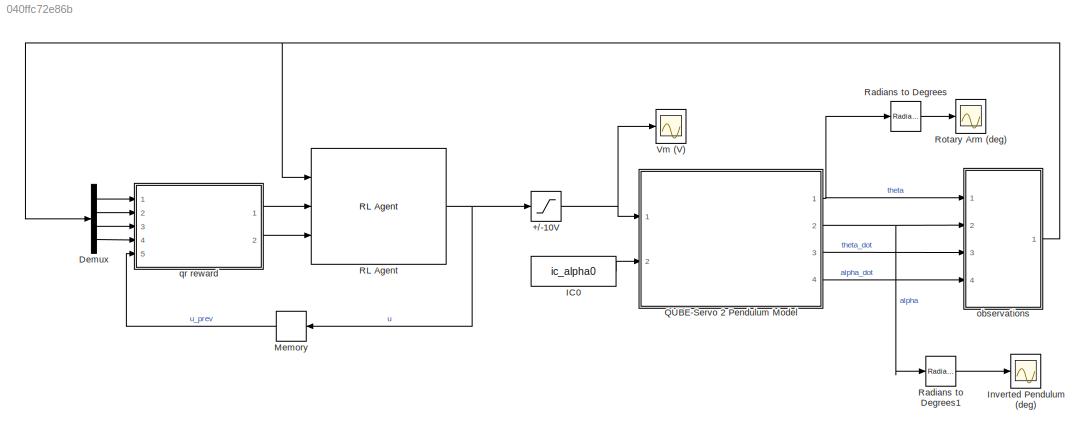
MODEL slx_040ffc72e86b
KIND model
CONFIG AbsTol = auto
CONFIG EnableMultiTasking = on
CONFIG FixedStep = 0.002
CONFIG MaxStep = auto
CONFIG MinStep = auto
CONFIG RelTol = 1e-3
CONFIG SampleTimeConstraint = Unconstrained
CONFIG SolverName = ode4
CONFIG StartTime = 0.0
CONFIG StopTime = inf
BLOCK [Saturate] +//-10V
  LowerLimit = -Vmax
  OutDataTypeStr = Inherit: Inherit via back propagation
  UpperLimit = Vmax
BLOCK [Demux] Demux
  Ports = [1, 4]
BLOCK [Constant] IC0
  Value = ic_alpha0
BLOCK [Scope] Inverted Pendulum (deg)
  Floating = off
  NumInputPorts = 1
  Ports = [1]
  ScopeSpecificationString = Simulink.scopes.TimeScopeBlockCfg('CurrentConfiguration', extmgr.ConfigurationSet(extmgr.Configuration('Core','General UI',true),extmgr.Configuration('Core','Source UI',true),extmgr.Configuration('Sources','WiredSimulink',true,'DataLoggingVariableName','ScopeData1'),extmgr.Configuration('Visuals','Time Domain',true,'SerializedDisplays',{struct('MinYLimReal','-15','MaxYLimReal','15','YLabelReal',''...<+1410ch>
BLOCK [Memory] Memory
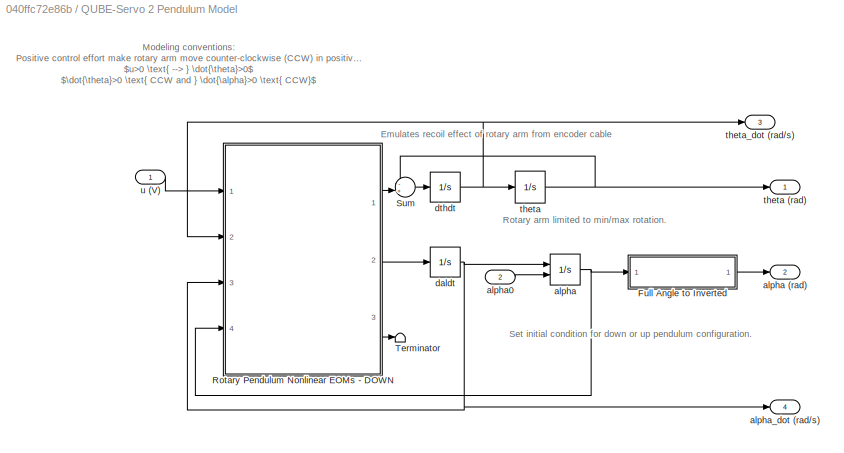
BLOCK [SubSystem] QUBE-Servo 2 Pendulum Model
  Ports = [2, 4]
  RequestExecContextInheritance = off
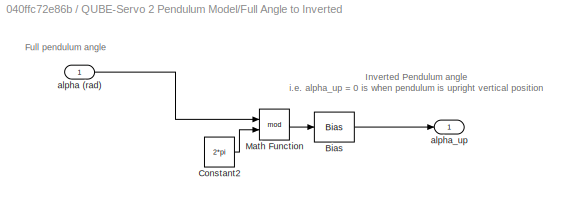
BLOCK [SubSystem] QUBE-Servo 2 Pendulum Model/Full Angle to Inverted
  Ports = [1, 1]
  RequestExecContextInheritance = off
BLOCK [Bias] QUBE-Servo 2 Pendulum Model/Full Angle to Inverted/Bias
  Bias = -pi
  SaturateOnIntegerOverflow = off
BLOCK [Constant] QUBE-Servo 2 Pendulum Model/Full Angle to Inverted/Constant2
  Value = 2*pi
BLOCK [Math] QUBE-Servo 2 Pendulum Model/Full Angle to Inverted/Math Function
  Operator = mod
  Ports = [2, 1]
  SignedPower = on
BLOCK [Inport] QUBE-Servo 2 Pendulum Model/Full Angle to Inverted/alpha (rad)
BLOCK [Outport] QUBE-Servo 2 Pendulum Model/Full Angle to Inverted/alpha_up
  VectorParamsAs1DForOutWhenUnconnected = off
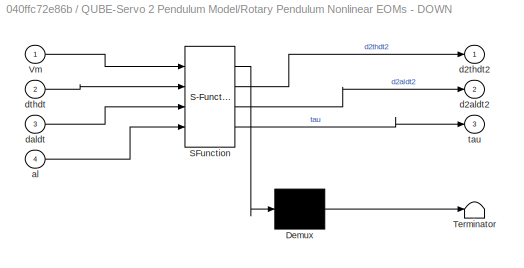
BLOCK [SubSystem] QUBE-Servo 2 Pendulum Model/Rotary Pendulum Nonlinear EOMs - DOWN
  ErrorFcn = Stateflow.Translate.translate
  PermitHierarchicalResolution = ExplicitOnly
  Ports = [4, 3]
  RequestExecContextInheritance = off
  SFBlockType = MATLAB Function
  TreatAsAtomicUnit = on
BLOCK [Demux] QUBE-Servo 2 Pendulum Model/Rotary Pendulum Nonlinear EOMs - DOWN/ Demux 
  Outputs = 1
  Ports = [1, 1]
BLOCK [S-Function] QUBE-Servo 2 Pendulum Model/Rotary Pendulum Nonlinear EOMs - DOWN/ SFunction 
  EnableBusSupport = on
  FunctionName = sf_sfun
  Parameters = Jp,Jr,Rm,bp,br,g,km,kt,l,mp,r
  PortCounts = [4 4]
  Ports = [4, 4]
  SFcnIsStateOwnerBlock = off
  SFunctionDeploymentMode = off
  Tag = Stateflow S-Function 6
BLOCK [Terminator] QUBE-Servo 2 Pendulum Model/Rotary Pendulum Nonlinear EOMs - DOWN/ Terminator 
BLOCK [Inport] QUBE-Servo 2 Pendulum Model/Rotary Pendulum Nonlinear EOMs - DOWN/Vm
BLOCK [Inport] QUBE-Servo 2 Pendulum Model/Rotary Pendulum Nonlinear EOMs - DOWN/al
  Port = 4
BLOCK [Outport] QUBE-Servo 2 Pendulum Model/Rotary Pendulum Nonlinear EOMs - DOWN/d2aldt2
  Port = 2
  VectorParamsAs1DForOutWhenUnconnected = off
BLOCK [Outport] QUBE-Servo 2 Pendulum Model/Rotary Pendulum Nonlinear EOMs - DOWN/d2thdt2
  VectorParamsAs1DForOutWhenUnconnected = off
BLOCK [Inport] QUBE-Servo 2 Pendulum Model/Rotary Pendulum Nonlinear EOMs - DOWN/daldt
  Port = 3
BLOCK [Inport] QUBE-Servo 2 Pendulum Model/Rotary Pendulum Nonlinear EOMs - DOWN/dthdt
  Port = 2
BLOCK [Outport] QUBE-Servo 2 Pendulum Model/Rotary Pendulum Nonlinear EOMs - DOWN/tau
  Port = 3
  VectorParamsAs1DForOutWhenUnconnected = off
BLOCK [Sum] QUBE-Servo 2 Pendulum Model/Sum
  Inputs = -+|
  Ports = [2, 1]
BLOCK [Terminator] QUBE-Servo 2 Pendulum Model/Terminator
BLOCK [Integrator] QUBE-Servo 2 Pendulum Model/alpha
  InitialCondition = ic_alpha0
  InitialConditionSource = external
  Ports = [2, 1]
BLOCK [Outport] QUBE-Servo 2 Pendulum Model/alpha (rad)
  Port = 2
  VectorParamsAs1DForOutWhenUnconnected = off
BLOCK [Inport] QUBE-Servo 2 Pendulum Model/alpha0
  Port = 2
BLOCK [Outport] QUBE-Servo 2 Pendulum Model/alpha_dot (rad//s)
  Port = 4
  VectorParamsAs1DForOutWhenUnconnected = off
BLOCK [Integrator] QUBE-Servo 2 Pendulum Model/daldt
  Ports = [1, 1]
BLOCK [Integrator] QUBE-Servo 2 Pendulum Model/dthdt
  Ports = [1, 1]
BLOCK [Integrator] QUBE-Servo 2 Pendulum Model/theta
  LimitOutput = on
  LowerSaturationLimit = -theta_max
  Ports = [1, 1]
  UpperSaturationLimit = theta_max
BLOCK [Outport] QUBE-Servo 2 Pendulum Model/theta (rad)
  VectorParamsAs1DForOutWhenUnconnected = off
BLOCK [Outport] QUBE-Servo 2 Pendulum Model/theta_dot (rad//s)
  Port = 3
  VectorParamsAs1DForOutWhenUnconnected = off
BLOCK [Inport] QUBE-Servo 2 Pendulum Model/u (V)
BLOCK [Reference] RL Agent  REF=rllib/RL Agent
  Ports = [3, 1]
  SourceBlock = rllib/RL Agent
  SourceProductBaseCode = RL
  SourceType = RL Agent
BLOCK [Reference] Radians to Degrees  REF=simulink_extras/Transformations/Radians
to Degrees
  Ports = [1, 1]
  SourceBlock = simulink_extras/Transformations/Radians\nto Degrees
  SourceProductBaseCode = SL
  SourceType = RadiansToDegrees
BLOCK [Reference] Radians to Degrees1  REF=simulink_extras/Transformations/Radians
to Degrees
  Ports = [1, 1]
  SourceBlock = simulink_extras/Transformations/Radians\nto Degrees
  SourceProductBaseCode = SL
  SourceType = RadiansToDegrees
BLOCK [Scope] Rotary Arm (deg)
  Floating = off
  NumInputPorts = 1
  Ports = [1]
  ScopeSpecificationString = Simulink.scopes.TimeScopeBlockCfg('CurrentConfiguration', extmgr.ConfigurationSet(extmgr.Configuration('Core','General UI',true),extmgr.Configuration('Core','Source UI',true),extmgr.Configuration('Sources','WiredSimulink',true,'DataLoggingVariableName','ScopeData2'),extmgr.Configuration('Visuals','Time Domain',true,'SerializedDisplays',{struct('MinYLimReal','-60','MaxYLimReal','60','YLabelReal',''...<+1413ch>
BLOCK [Scope] Vm (V)
  Floating = off
  NumInputPorts = 1
  Ports = [1]
  ScopeSpecificationString = Simulink.scopes.TimeScopeBlockCfg('CurrentConfiguration', extmgr.ConfigurationSet(extmgr.Configuration('Core','General UI',true),extmgr.Configuration('Core','Source UI',true),extmgr.Configuration('Sources','WiredSimulink',true),extmgr.Configuration('Visuals','Time Domain',true,'SerializedDisplays',{struct('MinYLimReal','-5.00000','MaxYLimReal','5.00000','YLabelReal','','MinYLimMag','0.00000','MaxY...<+1445ch>
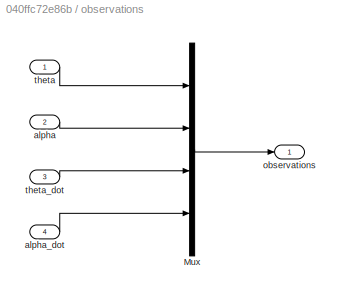
BLOCK [SubSystem] observations
  Ports = [4, 1]
  RequestExecContextInheritance = off
  VariantControl = sincos
BLOCK [Mux] observations/Mux
  DisplayOption = bar
  Ports = [4, 1]
BLOCK [Inport] observations/alpha
  Port = 2
BLOCK [Inport] observations/alpha_dot
  Port = 4
BLOCK [Outport] observations/observations
  VectorParamsAs1DForOutWhenUnconnected = off
BLOCK [Inport] observations/theta
BLOCK [Inport] observations/theta_dot
  Port = 3
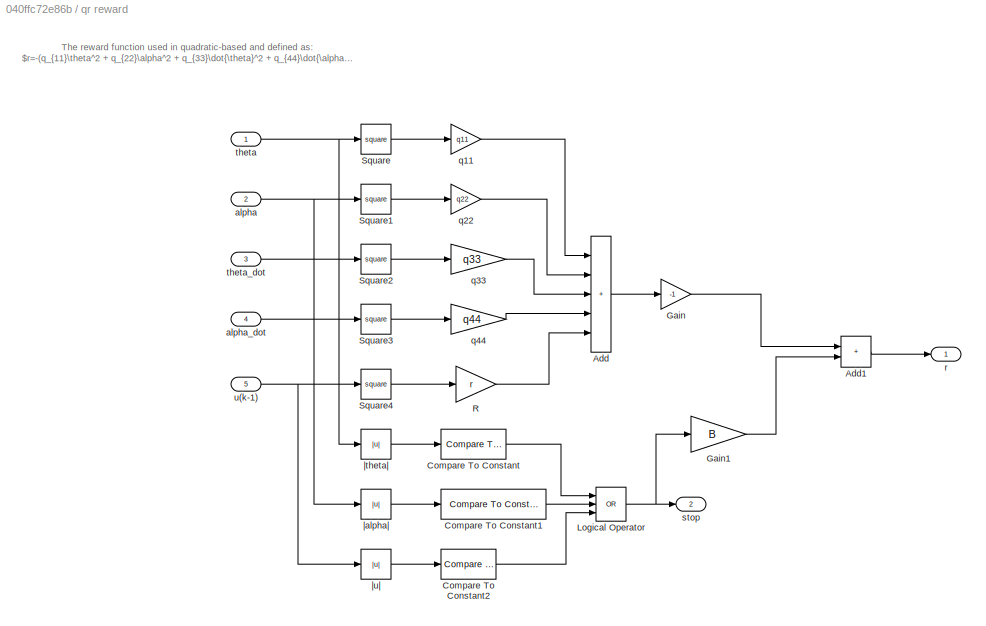
BLOCK [SubSystem] qr reward
  Ports = [5, 2]
  RequestExecContextInheritance = off
BLOCK [Sum] qr reward/Add
  IconShape = rectangular
  Inputs = +++++
  Ports = [5, 1]
BLOCK [Sum] qr reward/Add1
  IconShape = rectangular
  Ports = [2, 1]
BLOCK [Reference] qr reward/Compare To Constant  REF=simulink/Logic and Bit
Operations/Compare
To Constant
  Ports = [1, 1]
  SourceBlock = simulink/Logic and Bit\nOperations/Compare\nTo Constant
  SourceProductBaseCode = SL
  SourceType = Compare To Constant
BLOCK [Reference] qr reward/Compare To Constant1  REF=simulink/Logic and Bit
Operations/Compare
To Constant
  Ports = [1, 1]
  SourceBlock = simulink/Logic and Bit\nOperations/Compare\nTo Constant
  SourceProductBaseCode = SL
  SourceType = Compare To Constant
BLOCK [Reference] qr reward/Compare To Constant2  REF=simulink/Logic and Bit
Operations/Compare
To Constant
  Ports = [1, 1]
  SourceBlock = simulink/Logic and Bit\nOperations/Compare\nTo Constant
  SourceProductBaseCode = SL
  SourceType = Compare To Constant
BLOCK [Gain] qr reward/Gain
  Gain = -1
BLOCK [Gain] qr reward/Gain1
  Gain = B
BLOCK [Logic] qr reward/Logical Operator
  AllPortsSameDT = off
  Inputs = 3
  Operator = OR
  OutDataTypeStr = boolean
  Ports = [3, 1]
BLOCK [Gain] qr reward/R
  Gain = r
BLOCK [Math] qr reward/Square
  Operator = square
  Ports = [1, 1]
BLOCK [Math] qr reward/Square1
  Operator = square
  Ports = [1, 1]
BLOCK [Math] qr reward/Square2
  Operator = square
  Ports = [1, 1]
BLOCK [Math] qr reward/Square3
  Operator = square
  Ports = [1, 1]
BLOCK [Math] qr reward/Square4
  Operator = square
  Ports = [1, 1]
BLOCK [Inport] qr reward/alpha
  Port = 2
BLOCK [Inport] qr reward/alpha_dot
  Port = 4
BLOCK [Gain] qr reward/q11
  Gain = q11
BLOCK [Gain] qr reward/q22
  Gain = q22
BLOCK [Gain] qr reward/q33
  Gain = q33
BLOCK [Gain] qr reward/q44
  Gain = q44
BLOCK [Outport] qr reward/r
  VectorParamsAs1DForOutWhenUnconnected = off
BLOCK [Outport] qr reward/stop
  Port = 2
  VectorParamsAs1DForOutWhenUnconnected = off
BLOCK [Inport] qr reward/theta
BLOCK [Inport] qr reward/theta_dot
  Port = 3
BLOCK [Inport] qr reward/u(k-1)
  Port = 5
BLOCK [Abs] qr reward/|alpha|
  SaturateOnIntegerOverflow = off
BLOCK [Abs] qr reward/|theta|
  SaturateOnIntegerOverflow = off
BLOCK [Abs] qr reward/|u|
  SaturateOnIntegerOverflow = off
ANNOTATION QUBE-Servo 2 Pendulum Model: Modeling conventions: Positive control effort make rotary arm move counter-clockwise (CCW) in positive direction. $u>0 \text{ --> } \dot{\theta}>0$ $\dot{\theta}>0 \text{ CCW and } \dot{\alpha}>0 \text{ CCW}$
ANNOTATION QUBE-Servo 2 Pendulum Model: Emulates recoil effect of rotary arm from encoder cable
ANNOTATION QUBE-Servo 2 Pendulum Model: Rotary arm limited to min/max rotation.
ANNOTATION QUBE-Servo 2 Pendulum Model: Set initial condition for down or up pendulum configuration.
ANNOTATION QUBE-Servo 2 Pendulum Model/Full Angle to Inverted: Full pendulum angle
ANNOTATION QUBE-Servo 2 Pendulum Model/Full Angle to Inverted: Inverted Pendulum angle i.e. alpha_up = 0 is when pendulum is upright vertical position
ANNOTATION qr reward: The reward function used in quadratic-based and defined as: $r=-(q_{11}\theta^2 + q_{22}\alpha^2 + q_{33}\dot{\theta}^2 + q_{44}\dot{\alpha}^2 + r_{11}u^2)+B(|\theta|>\theta_{max} \, OR \, |\alpha|>\alpha_{threshold} \, OR \, |u|>u_{max})$
NET +//-10V:1 -> QUBE-Servo 2 Pendulum Model:1, Vm (V):1
LINE Demux:1 -> qr reward:1
LINE Demux:2 -> qr reward:2
LINE Demux:3 -> qr reward:3
LINE Demux:4 -> qr reward:4
LINE IC0:1 -> QUBE-Servo 2 Pendulum Model:2
LINE Memory:1 -> qr reward:5
LINE QUBE-Servo 2 Pendulum Model/Full Angle to Inverted/Bias:1 -> QUBE-Servo 2 Pendulum Model/Full Angle to Inverted/alpha_up:1
LINE QUBE-Servo 2 Pendulum Model/Full Angle to Inverted/Constant2:1 -> QUBE-Servo 2 Pendulum Model/Full Angle to Inverted/Math Function:2
LINE QUBE-Servo 2 Pendulum Model/Full Angle to Inverted/Math Function:1 -> QUBE-Servo 2 Pendulum Model/Full Angle to Inverted/Bias:1
LINE QUBE-Servo 2 Pendulum Model/Full Angle to Inverted/alpha (rad):1 -> QUBE-Servo 2 Pendulum Model/Full Angle to Inverted/Math Function:1
LINE QUBE-Servo 2 Pendulum Model/Full Angle to Inverted:1 -> QUBE-Servo 2 Pendulum Model/alpha (rad):1
LINE QUBE-Servo 2 Pendulum Model/Rotary Pendulum Nonlinear EOMs - DOWN:1 -> QUBE-Servo 2 Pendulum Model/Sum:2
LINE QUBE-Servo 2 Pendulum Model/Rotary Pendulum Nonlinear EOMs - DOWN:2 -> QUBE-Servo 2 Pendulum Model/daldt:1
LINE QUBE-Servo 2 Pendulum Model/Rotary Pendulum Nonlinear EOMs - DOWN:3 -> QUBE-Servo 2 Pendulum Model/Terminator:1
LINE QUBE-Servo 2 Pendulum Model/Sum:1 -> QUBE-Servo 2 Pendulum Model/dthdt:1
LINE QUBE-Servo 2 Pendulum Model/alpha0:1 -> QUBE-Servo 2 Pendulum Model/alpha:2
NET QUBE-Servo 2 Pendulum Model/alpha:1 -> QUBE-Servo 2 Pendulum Model/Full Angle to Inverted:1, QUBE-Servo 2 Pendulum Model/Rotary Pendulum Nonlinear EOMs - DOWN:4
NET QUBE-Servo 2 Pendulum Model/daldt:1 -> QUBE-Servo 2 Pendulum Model/Rotary Pendulum Nonlinear EOMs - DOWN:3, QUBE-Servo 2 Pendulum Model/alpha:1, QUBE-Servo 2 Pendulum Model/alpha_dot (rad//s):1
NET QUBE-Servo 2 Pendulum Model/dthdt:1 -> QUBE-Servo 2 Pendulum Model/Rotary Pendulum Nonlinear EOMs - DOWN:2, QUBE-Servo 2 Pendulum Model/theta:1, QUBE-Servo 2 Pendulum Model/theta_dot (rad//s):1
NET QUBE-Servo 2 Pendulum Model/theta:1 -> QUBE-Servo 2 Pendulum Model/Sum:1, QUBE-Servo 2 Pendulum Model/theta (rad):1
LINE QUBE-Servo 2 Pendulum Model/u (V):1 -> QUBE-Servo 2 Pendulum Model/Rotary Pendulum Nonlinear EOMs - DOWN:1
NET QUBE-Servo 2 Pendulum Model:1 -> Radians to Degrees:1, observations:1
NET QUBE-Servo 2 Pendulum Model:2 -> Radians to Degrees1:1, observations:2
LINE QUBE-Servo 2 Pendulum Model:3 -> observations:3
LINE QUBE-Servo 2 Pendulum Model:4 -> observations:4
NET RL Agent:1 -> +//-10V:1, Memory:1
LINE Radians to Degrees1:1 -> Inverted Pendulum (deg):1
LINE Radians to Degrees:1 -> Rotary Arm (deg):1
LINE observations/Mux:1 -> observations/observations:1
LINE observations/alpha:1 -> observations/Mux:2
LINE observations/alpha_dot:1 -> observations/Mux:4
LINE observations/theta:1 -> observations/Mux:1
LINE observations/theta_dot:1 -> observations/Mux:3
NET observations:1 -> Demux:1, RL Agent:1
LINE qr reward/Add1:1 -> qr reward/r:1
LINE qr reward/Add:1 -> qr reward/Gain:1
LINE qr reward/Compare To Constant1:1 -> qr reward/Logical Operator:2
LINE qr reward/Compare To Constant2:1 -> qr reward/Logical Operator:3
LINE qr reward/Compare To Constant:1 -> qr reward/Logical Operator:1
LINE qr reward/Gain1:1 -> qr reward/Add1:2
LINE qr reward/Gain:1 -> qr reward/Add1:1
NET qr reward/Logical Operator:1 -> qr reward/Gain1:1, qr reward/stop:1
LINE qr reward/R:1 -> qr reward/Add:5
LINE qr reward/Square1:1 -> qr reward/q22:1
LINE qr reward/Square2:1 -> qr reward/q33:1
LINE qr reward/Square3:1 -> qr reward/q44:1
LINE qr reward/Square4:1 -> qr reward/R:1
LINE qr reward/Square:1 -> qr reward/q11:1
NET qr reward/alpha:1 -> qr reward/Square1:1, qr reward/|alpha|:1
LINE qr reward/alpha_dot:1 -> qr reward/Square3:1
LINE qr reward/q11:1 -> qr reward/Add:1
LINE qr reward/q22:1 -> qr reward/Add:2
LINE qr reward/q33:1 -> qr reward/Add:3
LINE qr reward/q44:1 -> qr reward/Add:4
NET qr reward/theta:1 -> qr reward/Square:1, qr reward/|theta|:1
LINE qr reward/theta_dot:1 -> qr reward/Square2:1
NET qr reward/u(k-1):1 -> qr reward/Square4:1, qr reward/|u|:1
LINE qr reward/|alpha|:1 -> qr reward/Compare To Constant1:1
LINE qr reward/|theta|:1 -> qr reward/Compare To Constant:1
LINE qr reward/|u|:1 -> qr reward/Compare To Constant2:1
LINE qr reward:1 -> RL Agent:2
LINE qr reward:2 -> RL Agent:3
note: NET lines group one-source signal fan-out (src -> all destinations, sorted); 1:1 wires keep LINE
CHART QUBE-Servo 2 Pendulum Model/Rotary Pendulum Nonlinear EOMs - DOWN states=1 transitions=1
  STATE_LABEL 'eML_blk_kernel()'
  STATE_LABEL 'SCRIPT:\nfunction [d2thdt2,d2aldt2,tau] = pen_nonlin_eoms(Vm, dthdt, daldt, Jp, Jr, l, mp, br, bp, r, kt, km, Rm, al, g)\n\n% Convert voltage to torque input\ntau = (Vm - km*dthdt)/Rm;\ntau=kt*tau;\n% Denominator\nJt = Jr*Jp + Jp^2*sin(al)^2 - mp^2*r^2*l^2*cos(al)^2;\n% Nonlinear equations of motion for generic rotary pendulum (i.e. furuta)\n% Terms from EOM solving\nterm1 = tau - br*dthdt + 2*Jp*sin(al)*co...<+294ch>'
CHART  states=0 transitions=0
